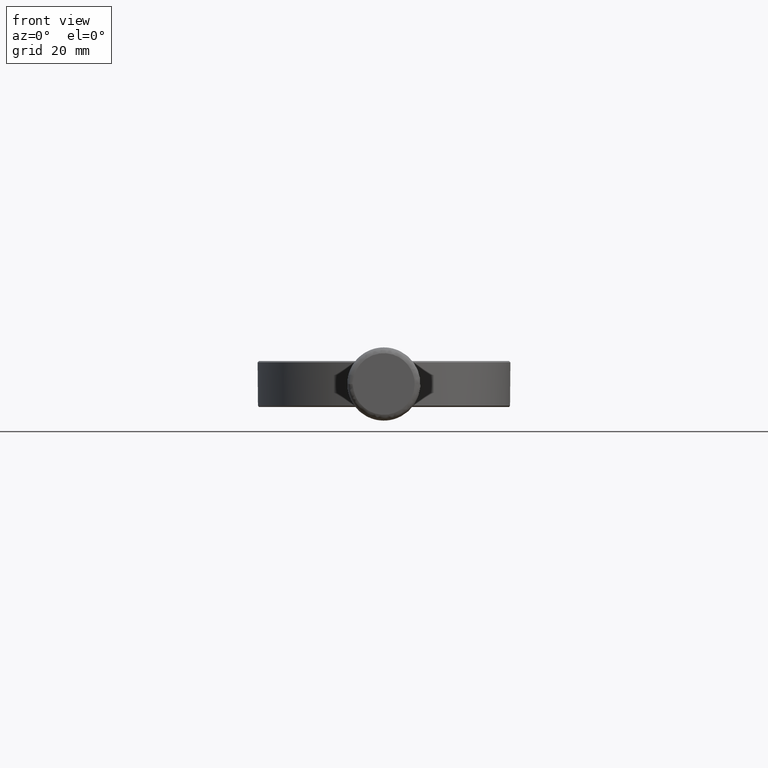
[diagram: clean part render]
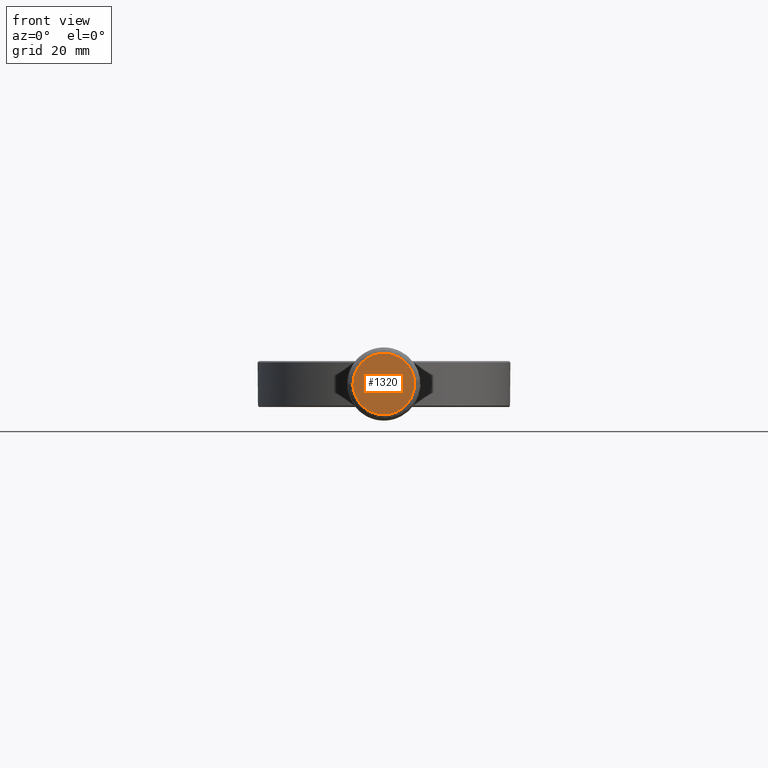
[diagram: same view with one face highlighted and labeled with its STEP entity id]
A machine part, front view. The second image highlights one B-rep face of the part: STEP entity #1320.
In plain terms, the highlighted planar face has unit normal (0, 1, 0).
Its self-contained STEP definition (entity closure, byte-faithful):
#1 = CARTESIAN_POINT ( 'NONE',  ( -5.350000000000003197, -37.50000000000000000, -10.69999999999998153 ) ) ;
#64 = ORIENTED_EDGE ( 'NONE', *, *, #1804, .F. ) ;
#224 = FACE_OUTER_BOUND ( 'NONE', #2188, .T. ) ;
#257 = CARTESIAN_POINT ( 'NONE',  ( 0.000000000000000000, -37.50000000000000000, 0.000000000000000000 ) ) ;
#477 = CARTESIAN_POINT ( 'NONE',  ( 5.349999999999999645, -37.50000000000000000, 0.000000000000000000 ) ) ;
#629 = EDGE_CURVE ( 'NONE', #999, #2704, #1679, .T. ) ;
#999 = VERTEX_POINT ( 'NONE', #2425 ) ;
#1320 = ADVANCED_FACE ( 'NONE', ( #224 ), #2679, .F. ) ;
#1587 =( BOUNDED_CURVE ( )  B_SPLINE_CURVE ( 3, ( #2910, #2424, #1, #1897 ),
 .UNSPECIFIED., .F., .T. ) 
 B_SPLINE_CURVE_WITH_KNOTS ( ( 4, 4 ),
 ( 0.000000000000000000, 1.000000000000000000 ),
 .UNSPECIFIED. ) 
 CURVE ( )  GEOMETRIC_REPRESENTATION_ITEM ( )  RATIONAL_B_SPLINE_CURVE ( ( 1.000000000000000000, 0.3333333333333339810, 0.3333333333333339810, 1.000000000000000000 ) ) 
 REPRESENTATION_ITEM ( '' )  );
#1679 =( BOUNDED_CURVE ( )  B_SPLINE_CURVE ( 3, ( #2388, #2921, #3156, #477 ),
 .UNSPECIFIED., .F., .F. ) 
 B_SPLINE_CURVE_WITH_KNOTS ( ( 4, 4 ),
 ( 0.000000000000000000, 1.000000000000000000 ),
 .UNSPECIFIED. ) 
 CURVE ( )  GEOMETRIC_REPRESENTATION_ITEM ( )  RATIONAL_B_SPLINE_CURVE ( ( 1.000000000000000000, 0.3333333333333327597, 0.3333333333333327597, 1.000000000000000000 ) ) 
 REPRESENTATION_ITEM ( '' )  );
#1804 = EDGE_CURVE ( 'NONE', #2704, #999, #1587, .T. ) ;
#1884 = DIRECTION ( 'NONE',  ( 0.000000000000000000, 1.000000000000000000, 0.000000000000000000 ) ) ;
#1897 = CARTESIAN_POINT ( 'NONE',  ( -5.349999999999999645, -37.50000000000000000, 6.551860375438339695E-16 ) ) ;
#1945 = DIRECTION ( 'NONE',  ( 0.000000000000000000, 0.000000000000000000, 1.000000000000000000 ) ) ;
#2050 = AXIS2_PLACEMENT_3D ( 'NONE', #257, #1884, #1945 ) ;
#2188 = EDGE_LOOP ( 'NONE', ( #2559, #64 ) ) ;
#2388 = CARTESIAN_POINT ( 'NONE',  ( -5.349999999999999645, -37.50000000000000000, 6.551860375438339695E-16 ) ) ;
#2424 = CARTESIAN_POINT ( 'NONE',  ( 5.349999999999982769, -37.50000000000000000, -10.69999999999999041 ) ) ;
#2425 = CARTESIAN_POINT ( 'NONE',  ( -5.349999999999999645, -37.50000000000000000, 6.551860375438339695E-16 ) ) ;
#2559 = ORIENTED_EDGE ( 'NONE', *, *, #629, .F. ) ;
#2679 = PLANE ( 'NONE',  #2050 ) ;
#2704 = VERTEX_POINT ( 'NONE', #2927 ) ;
#2910 = CARTESIAN_POINT ( 'NONE',  ( 5.349999999999999645, -37.50000000000000000, 0.000000000000000000 ) ) ;
#2921 = CARTESIAN_POINT ( 'NONE',  ( -5.349999999999999645, -37.50000000000000000, 10.70000000000002416 ) ) ;
#2927 = CARTESIAN_POINT ( 'NONE',  ( 5.349999999999999645, -37.50000000000000000, 0.000000000000000000 ) ) ;
#3156 = CARTESIAN_POINT ( 'NONE',  ( 5.350000000000020961, -37.50000000000000000, 10.70000000000001350 ) ) ;